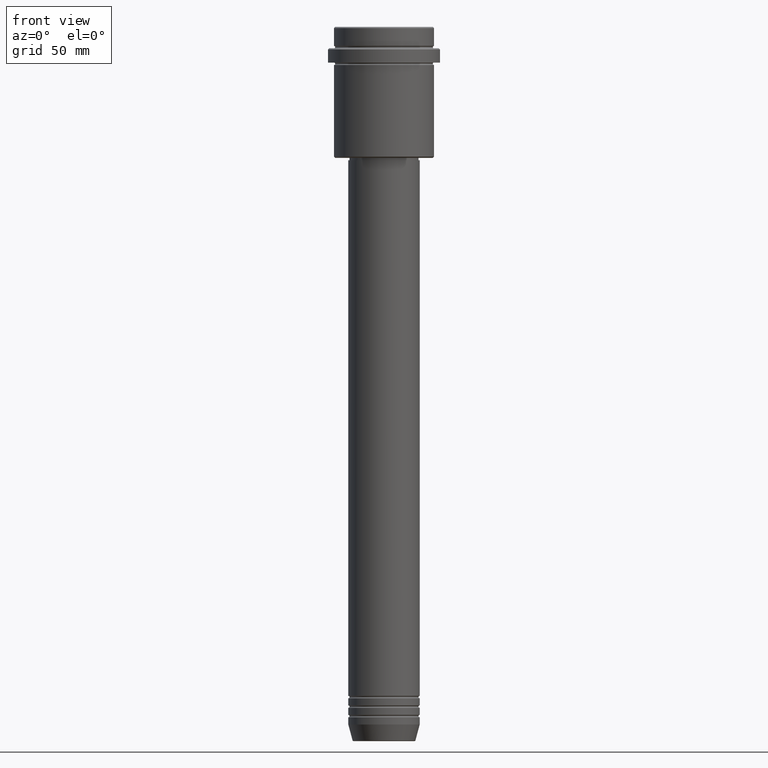
[diagram: clean part render]
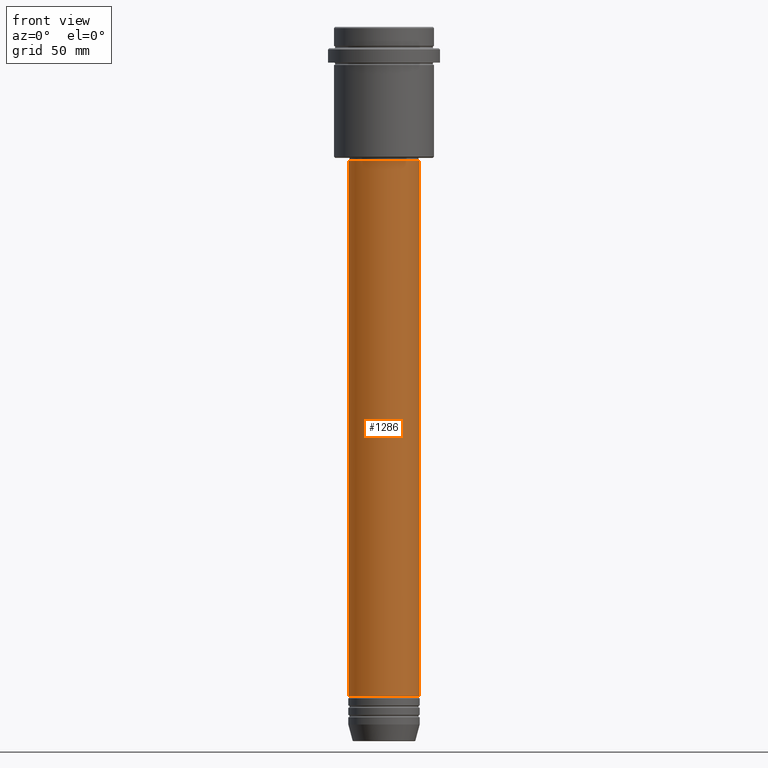
[diagram: same view with one face highlighted and labeled with its STEP entity id]
A machine part, front view. The second image highlights one B-rep face of the part: STEP entity #1286.
In plain terms, the highlighted cylindrical surface (edge-blend (fillet) strip) has radius 15 mm, axis along (-0, -0, 1).
Its self-contained STEP definition (entity closure, byte-faithful):
#3 = CARTESIAN_POINT ( 'NONE',  ( 15.00000000000000000, 0.000000000000000000, 0.000000000000000000 ) ) ;
#18 = CARTESIAN_POINT ( 'NONE',  ( 0.000000000000000000, 0.000000000000000000, -280.9999999999998863 ) ) ;
#28 = EDGE_CURVE ( 'NONE', #144, #1212, #223, .T. ) ;
#73 = VERTEX_POINT ( 'NONE', #995 ) ;
#91 = CIRCLE ( 'NONE', #1140, 15.00000000000000000 ) ;
#104 = DIRECTION ( 'NONE',  ( -0.000000000000000000, -0.000000000000000000, 1.000000000000000000 ) ) ;
#132 = LINE ( 'NONE', #568, #386 ) ;
#140 = DIRECTION ( 'NONE',  ( -0.000000000000000000, -0.000000000000000000, 1.000000000000000000 ) ) ;
#144 = VERTEX_POINT ( 'NONE', #627 ) ;
#171 = ORIENTED_EDGE ( 'NONE', *, *, #477, .F. ) ;
#181 = VECTOR ( 'NONE', #140, 1000.000000000000000 ) ;
#194 = DIRECTION ( 'NONE',  ( 1.000000000000000000, 0.000000000000000000, 0.000000000000000000 ) ) ;
#223 = LINE ( 'NONE', #3, #181 ) ;
#232 = CARTESIAN_POINT ( 'NONE',  ( 0.000000000000000000, 0.000000000000000000, 0.000000000000000000 ) ) ;
#276 = ORIENTED_EDGE ( 'NONE', *, *, #665, .F. ) ;
#386 = VECTOR ( 'NONE', #460, 1000.000000000000000 ) ;
#460 = DIRECTION ( 'NONE',  ( -0.000000000000000000, -0.000000000000000000, 1.000000000000000000 ) ) ;
#477 = EDGE_CURVE ( 'NONE', #1086, #73, #132, .T. ) ;
#493 = EDGE_LOOP ( 'NONE', ( #171, #538, #572, #276 ) ) ;
#538 = ORIENTED_EDGE ( 'NONE', *, *, #1309, .T. ) ;
#568 = CARTESIAN_POINT ( 'NONE',  ( -15.00000000000000000, 1.836970198721029589E-15, 0.000000000000000000 ) ) ;
#572 = ORIENTED_EDGE ( 'NONE', *, *, #28, .T. ) ;
#621 = CARTESIAN_POINT ( 'NONE',  ( 15.00000000000000000, 0.000000000000000000, -55.99999999999990763 ) ) ;
#627 = CARTESIAN_POINT ( 'NONE',  ( 15.00000000000000000, 0.000000000000000000, -280.9999999999998863 ) ) ;
#628 = AXIS2_PLACEMENT_3D ( 'NONE', #728, #1277, #194 ) ;
#656 = AXIS2_PLACEMENT_3D ( 'NONE', #232, #104, #779 ) ;
#665 = EDGE_CURVE ( 'NONE', #73, #1212, #1254, .T. ) ;
#671 = DIRECTION ( 'NONE',  ( -0.000000000000000000, -0.000000000000000000, 1.000000000000000000 ) ) ;
#728 = CARTESIAN_POINT ( 'NONE',  ( 0.000000000000000000, 0.000000000000000000, -55.99999999999990763 ) ) ;
#779 = DIRECTION ( 'NONE',  ( 1.000000000000000000, 0.000000000000000000, 0.000000000000000000 ) ) ;
#985 = DIRECTION ( 'NONE',  ( 1.000000000000000000, 0.000000000000000000, 0.000000000000000000 ) ) ;
#995 = CARTESIAN_POINT ( 'NONE',  ( -15.00000000000000000, 1.836970198721029589E-15, -55.99999999999990763 ) ) ;
#1086 = VERTEX_POINT ( 'NONE', #1389 ) ;
#1140 = AXIS2_PLACEMENT_3D ( 'NONE', #18, #671, #985 ) ;
#1212 = VERTEX_POINT ( 'NONE', #621 ) ;
#1217 = FACE_OUTER_BOUND ( 'NONE', #493, .T. ) ;
#1254 = CIRCLE ( 'NONE', #628, 15.00000000000000000 ) ;
#1277 = DIRECTION ( 'NONE',  ( -0.000000000000000000, -0.000000000000000000, 1.000000000000000000 ) ) ;
#1286 = ADVANCED_FACE ( 'NONE', ( #1217 ), #1417, .T. ) ;
#1309 = EDGE_CURVE ( 'NONE', #1086, #144, #91, .T. ) ;
#1389 = CARTESIAN_POINT ( 'NONE',  ( -15.00000000000000000, 1.836970198721029589E-15, -280.9999999999998863 ) ) ;
#1417 = CYLINDRICAL_SURFACE ( 'NONE', #656, 15.00000000000000000 ) ;